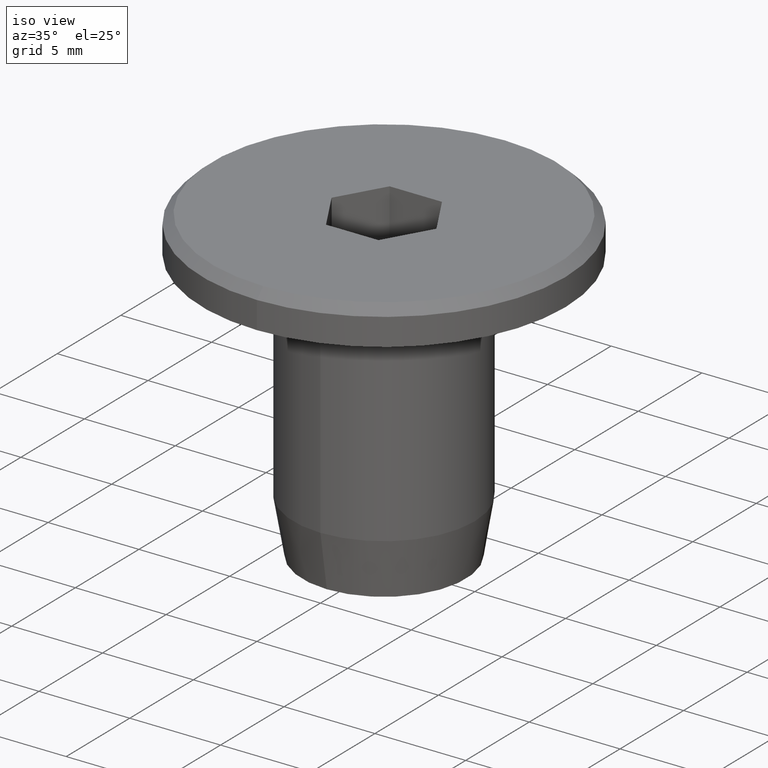
[diagram: clean part render]
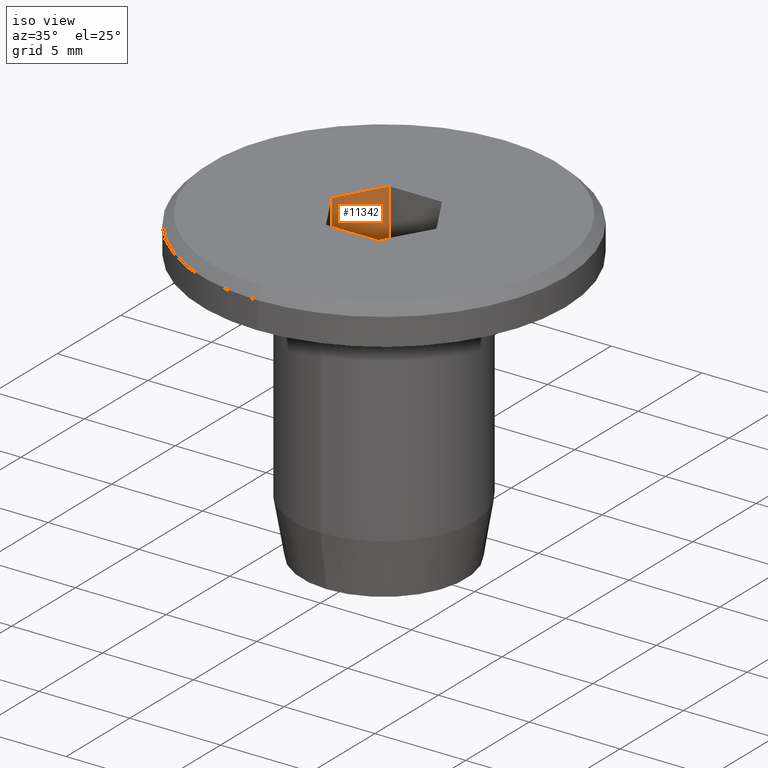
[diagram: same view with one face highlighted and labeled with its STEP entity id]
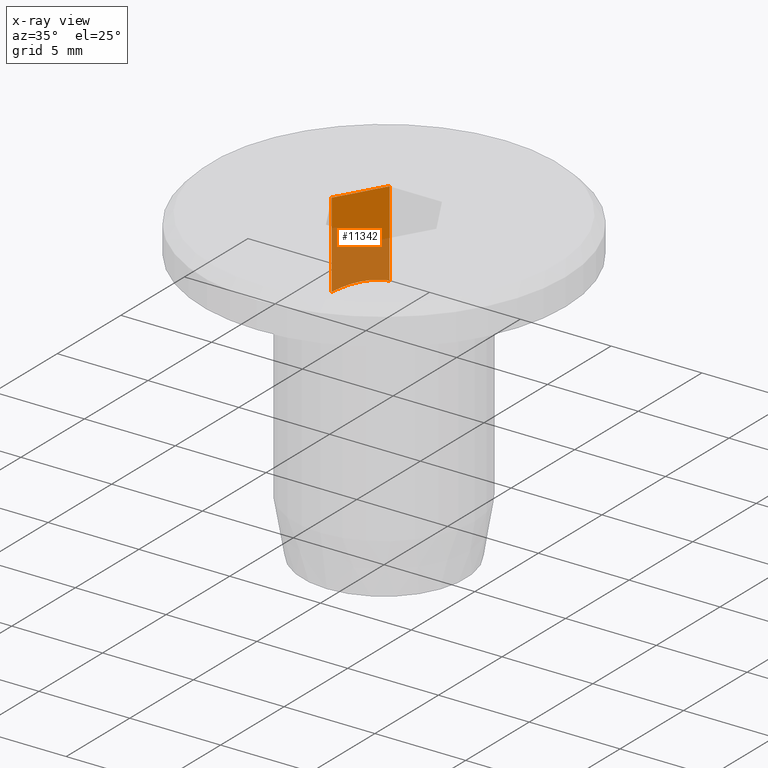
[diagram: x-ray of the same camera — body ghosted, the highlighted face saturated]
A machine part, iso view. The second image highlights one B-rep face of the part: STEP entity #11342.
The next image is the same camera in x-ray: the body ghosted, the highlighted face saturated — about 54% of this face is hidden behind the body in this view.
In plain terms, the highlighted planar face has unit normal (-0.866, 0.5, 0).
Its self-contained STEP definition (entity closure, byte-faithful):
#334 = CARTESIAN_POINT ( 'NONE',  ( -1.443375672974064500, 2.500000000000000000, 8.499999999999998200 ) ) ;
#372 = EDGE_CURVE ( 'NONE', #7650, #16473, #1175, .T. ) ;
#461 = LINE ( 'NONE', #334, #10571 ) ;
#1175 = B_SPLINE_CURVE_WITH_KNOTS ( 'NONE', 3,
 ( #10680, #2888, #14869, #12224, #2832, #4353, #13555, #10789 ),
 .UNSPECIFIED., .F., .F.,
 ( 4, 2, 2, 4 ),
 ( 2.386330728865167900E-007, 0.001458932498130400700, 0.002188279430659157600, 0.002917626363187914600 ),
 .UNSPECIFIED. ) ;
#1472 = CARTESIAN_POINT ( 'NONE',  ( -1.443375672974064500, 2.500000000000000000, 8.499999999999998200 ) ) ;
#1621 = ORIENTED_EDGE ( 'NONE', *, *, #5060, .F. ) ;
#1868 = VECTOR ( 'NONE', #4454, 1000.000000000000000 ) ;
#1869 = PLANE ( 'NONE',  #11391 ) ;
#2196 = VERTEX_POINT ( 'NONE', #8466 ) ;
#2832 = CARTESIAN_POINT ( 'NONE',  ( -1.920934322701775700, 1.672844155077614500, 4.018713501005156500 ) ) ;
#2888 = CARTESIAN_POINT ( 'NONE',  ( -2.651472570902169600, 0.4075147923221718000, 3.949760654408630800 ) ) ;
#3897 = ORIENTED_EDGE ( 'NONE', *, *, #372, .T. ) ;
#4353 = CARTESIAN_POINT ( 'NONE',  ( -1.680066129163376300, 2.090040104213457500, 3.937669810066552600 ) ) ;
#4454 = DIRECTION ( 'NONE',  ( -0.0000000000000000000, -0.0000000000000000000, 1.000000000000000000 ) ) ;
#5060 = EDGE_CURVE ( 'NONE', #7650, #2196, #13002, .T. ) ;
#5654 = DIRECTION ( 'NONE',  ( -0.5000000000000001100, -0.8660254037844386000, 0.0000000000000000000 ) ) ;
#6969 = EDGE_CURVE ( 'NONE', #11083, #2196, #461, .T. ) ;
#7498 = FACE_OUTER_BOUND ( 'NONE', #10669, .T. ) ;
#7611 = CARTESIAN_POINT ( 'NONE',  ( -1.443375672974064500, 2.500000000000000000, 3.808390903988669000 ) ) ;
#7650 = VERTEX_POINT ( 'NONE', #16877 ) ;
#8466 = CARTESIAN_POINT ( 'NONE',  ( -2.886751345948129500, 4.563409216969536400E-017, 8.499999999999998200 ) ) ;
#8570 = CARTESIAN_POINT ( 'NONE',  ( -1.443375672974064500, 2.500000000000000000, -8.499999999999994700 ) ) ;
#9089 = ORIENTED_EDGE ( 'NONE', *, *, #6969, .T. ) ;
#10571 = VECTOR ( 'NONE', #5654, 1000.000000000000000 ) ;
#10669 = EDGE_LOOP ( 'NONE', ( #1621, #3897, #12739, #9089 ) ) ;
#10680 = CARTESIAN_POINT ( 'NONE',  ( -2.886751345948129500, -9.238199175302383300E-017, 3.808390903988668500 ) ) ;
#10789 = CARTESIAN_POINT ( 'NONE',  ( -1.443375672974064500, 2.500000000000000000, 3.808390903988669000 ) ) ;
#11083 = VERTEX_POINT ( 'NONE', #1472 ) ;
#11214 = DIRECTION ( 'NONE',  ( -0.8660254037844386000, 0.5000000000000001100, 0.0000000000000000000 ) ) ;
#11272 = DIRECTION ( 'NONE',  ( -0.0000000000000000000, -0.0000000000000000000, 1.000000000000000000 ) ) ;
#11342 = ADVANCED_FACE ( 'NONE', ( #7498 ), #1869, .F. ) ;
#11351 = EDGE_CURVE ( 'NONE', #16473, #11083, #13686, .T. ) ;
#11391 = AXIS2_PLACEMENT_3D ( 'NONE', #12530, #11214, #13915 ) ;
#12224 = CARTESIAN_POINT ( 'NONE',  ( -2.043782441156800200, 1.460064972299272700, 4.040962208946303300 ) ) ;
#12530 = CARTESIAN_POINT ( 'NONE',  ( -1.443375672974064500, 2.500000000000000000, -8.499999999999994700 ) ) ;
#12739 = ORIENTED_EDGE ( 'NONE', *, *, #11351, .T. ) ;
#13002 = LINE ( 'NONE', #16355, #1868 ) ;
#13555 = CARTESIAN_POINT ( 'NONE',  ( -1.561188281649210900, 2.295942576002416100, 3.879179860967341600 ) ) ;
#13686 = LINE ( 'NONE', #8570, #15317 ) ;
#13915 = DIRECTION ( 'NONE',  ( -0.5000000000000001100, -0.8660254037844386000, 0.0000000000000000000 ) ) ;
#14869 = CARTESIAN_POINT ( 'NONE',  ( -2.412422255547020700, 0.8215620840826516300, 4.040395567009153600 ) ) ;
#15317 = VECTOR ( 'NONE', #11272, 1000.000000000000000 ) ;
#16355 = CARTESIAN_POINT ( 'NONE',  ( -2.886751345948129500, 4.563409216969536400E-017, -8.499999999999994700 ) ) ;
#16473 = VERTEX_POINT ( 'NONE', #7611 ) ;
#16877 = CARTESIAN_POINT ( 'NONE',  ( -2.886751345948129500, -9.238199175302383300E-017, 3.808390903988668500 ) ) ;